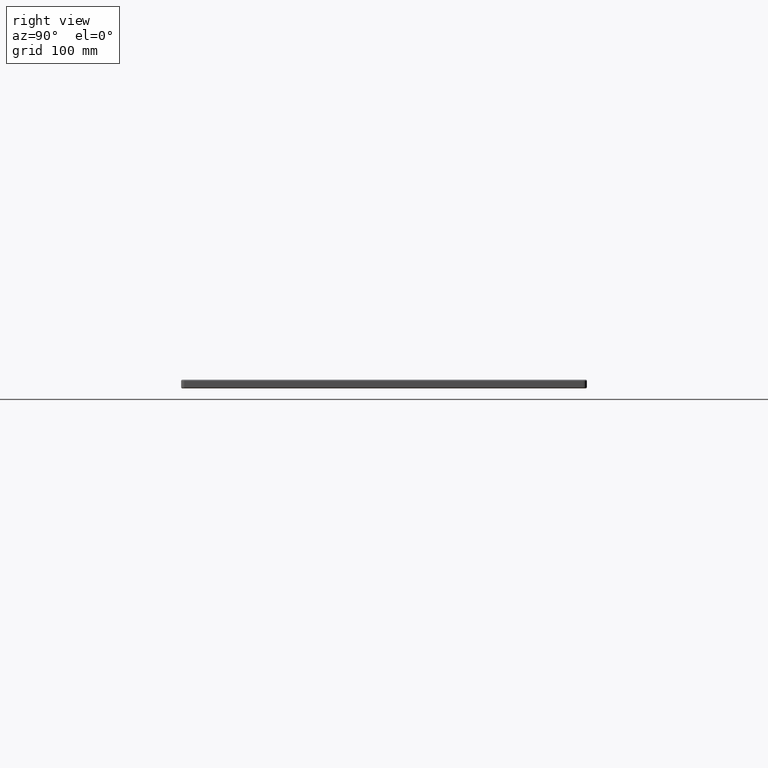
[diagram: clean part render]
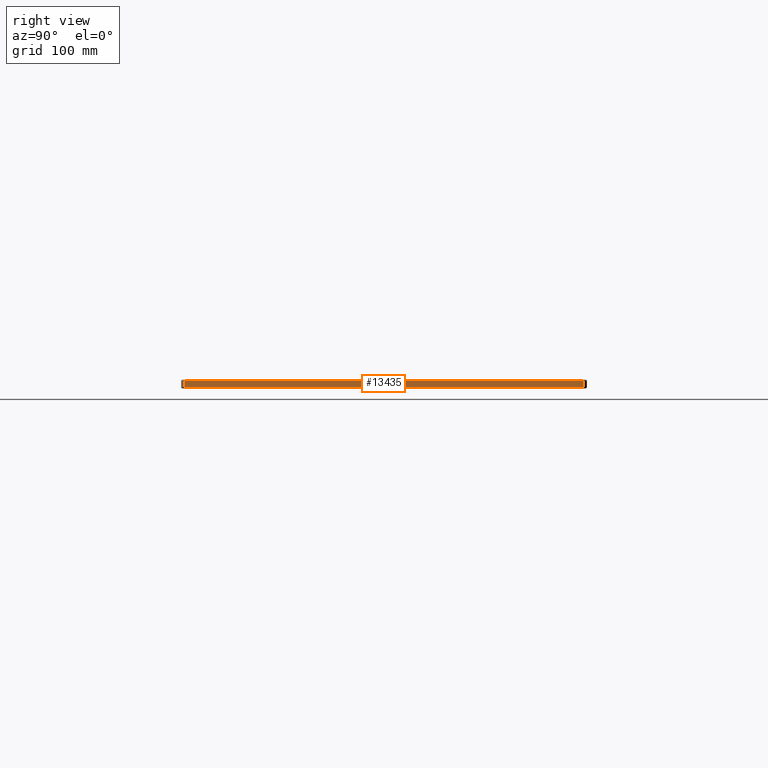
[diagram: same view with one face highlighted and labeled with its STEP entity id]
A machine part, right view. The second image highlights one B-rep face of the part: STEP entity #13435.
In plain terms, the highlighted planar face has unit normal (1, 0, -0).
Its self-contained STEP definition (entity closure, byte-faithful):
#1308 = CARTESIAN_POINT ( 'NONE',  ( 900.0000000000000000, 5.000000000000000000, -11.00000000000000000 ) ) ;
#2162 = ORIENTED_EDGE ( 'NONE', *, *, #39824, .T. ) ;
#2911 = DIRECTION ( 'NONE',  ( 0.0000000000000000000, 0.0000000000000000000, 1.000000000000000000 ) ) ;
#3782 = EDGE_LOOP ( 'NONE', ( #54602, #8732, #30778, #2162 ) ) ;
#3838 = VECTOR ( 'NONE', #32267, 1000.000000000000000 ) ;
#8732 = ORIENTED_EDGE ( 'NONE', *, *, #45471, .T. ) ;
#9322 = DIRECTION ( 'NONE',  ( 1.000000000000000000, 1.850371707708595100E-016, -0.0000000000000000000 ) ) ;
#9601 = FACE_OUTER_BOUND ( 'NONE', #3782, .T. ) ;
#10019 = DIRECTION ( 'NONE',  ( -1.850371707708595100E-016, 1.000000000000000000, 0.0000000000000000000 ) ) ;
#13435 = ADVANCED_FACE ( 'NONE', ( #9601 ), #56551, .T. ) ;
#16966 = CARTESIAN_POINT ( 'NONE',  ( 899.9999999999998900, 594.9999999999997700, -13.00000000000000000 ) ) ;
#17058 = VERTEX_POINT ( 'NONE', #1308 ) ;
#20827 = VECTOR ( 'NONE', #2911, 1000.000000000000000 ) ;
#21730 = CARTESIAN_POINT ( 'NONE',  ( 899.9999999999998900, 594.9999999999997700, -11.00000000000000000 ) ) ;
#21758 = CARTESIAN_POINT ( 'NONE',  ( 900.0000000000000000, 5.000000000000000000, -2.000000000000000000 ) ) ;
#23678 = CARTESIAN_POINT ( 'NONE',  ( 900.0000000000000000, 0.0000000000000000000, -11.00000000000000000 ) ) ;
#23982 = DIRECTION ( 'NONE',  ( -1.850371707708595100E-016, 1.000000000000000000, 0.0000000000000000000 ) ) ;
#25945 = VERTEX_POINT ( 'NONE', #21730 ) ;
#30778 = ORIENTED_EDGE ( 'NONE', *, *, #51233, .T. ) ;
#31493 = VECTOR ( 'NONE', #10019, 1000.000000000000000 ) ;
#32267 = DIRECTION ( 'NONE',  ( 1.850371707708595100E-016, -1.000000000000000000, -0.0000000000000000000 ) ) ;
#35502 = LINE ( 'NONE', #55386, #3838 ) ;
#35721 = CARTESIAN_POINT ( 'NONE',  ( 899.9999999999998900, 594.9999999999997700, -2.000000000000000000 ) ) ;
#37487 = CARTESIAN_POINT ( 'NONE',  ( 900.0000000000000000, 0.0000000000000000000, -13.00000000000000000 ) ) ;
#39354 = AXIS2_PLACEMENT_3D ( 'NONE', #37487, #9322, #23982 ) ;
#39824 = EDGE_CURVE ( 'NONE', #56579, #47389, #35502, .T. ) ;
#40900 = CARTESIAN_POINT ( 'NONE',  ( 900.0000000000000000, 5.000000000000000000, -13.00000000000000000 ) ) ;
#40921 = EDGE_CURVE ( 'NONE', #47389, #17058, #59554, .T. ) ;
#43988 = LINE ( 'NONE', #23678, #31493 ) ;
#45471 = EDGE_CURVE ( 'NONE', #17058, #25945, #43988, .T. ) ;
#46173 = VECTOR ( 'NONE', #50223, 1000.000000000000000 ) ;
#47389 = VERTEX_POINT ( 'NONE', #21758 ) ;
#50223 = DIRECTION ( 'NONE',  ( -0.0000000000000000000, -0.0000000000000000000, -1.000000000000000000 ) ) ;
#51233 = EDGE_CURVE ( 'NONE', #25945, #56579, #52476, .T. ) ;
#52476 = LINE ( 'NONE', #16966, #20827 ) ;
#54602 = ORIENTED_EDGE ( 'NONE', *, *, #40921, .T. ) ;
#55386 = CARTESIAN_POINT ( 'NONE',  ( 900.0000000000000000, 5.000000000000000000, -2.000000000000000000 ) ) ;
#56551 = PLANE ( 'NONE',  #39354 ) ;
#56579 = VERTEX_POINT ( 'NONE', #35721 ) ;
#59554 = LINE ( 'NONE', #40900, #46173 ) ;